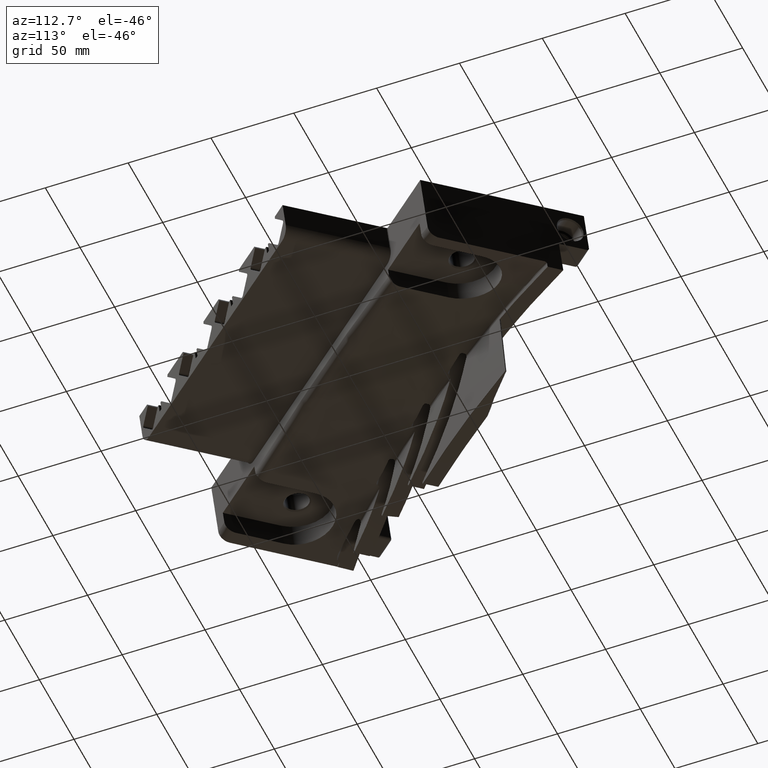
[diagram: clean part render]
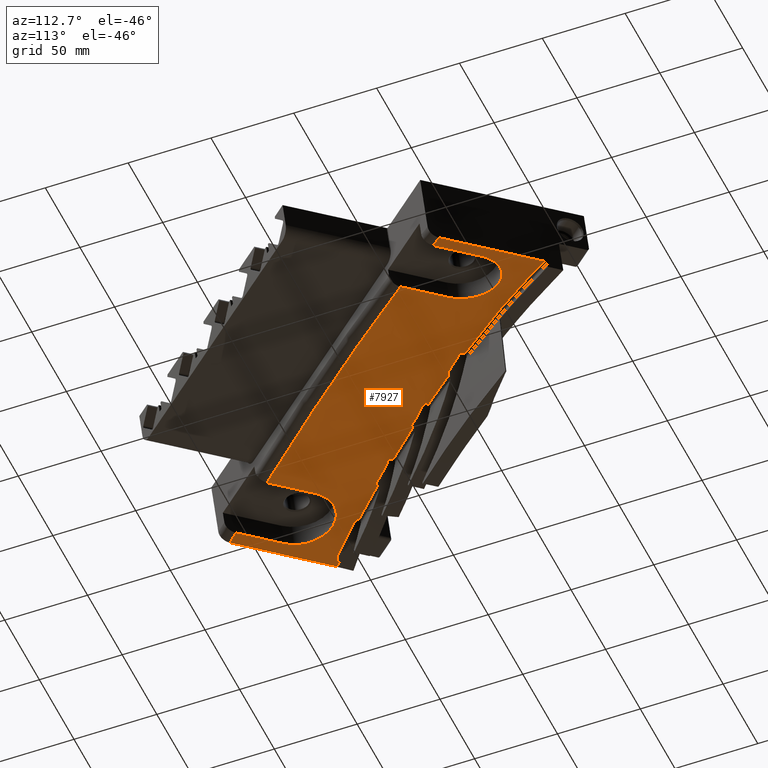
[diagram: same view with one face highlighted and labeled with its STEP entity id]
A machine part, auxiliary view. The second image highlights one B-rep face of the part: STEP entity #7927.
In plain terms, the highlighted face is a freeform B-spline surface patch.
Its self-contained STEP definition (entity closure, byte-faithful):
#1438=CARTESIAN_POINT('',(8.552506155167E1,-3.274479739800E1,
-5.628775795286E0));
#1439=CARTESIAN_POINT('',(8.554114015950E1,-3.272982308045E1,
-5.627841789960E0));
#1440=CARTESIAN_POINT('',(8.557790140134E1,-3.269404744532E1,
-5.627260807264E0));
#1441=CARTESIAN_POINT('',(8.560986553718E1,-3.266702117015E1,
-5.628614556335E0));
#1442=CARTESIAN_POINT('',(8.563017364487E1,-3.264801637074E1,
-5.627484155506E0));
#1621=CARTESIAN_POINT('',(9.049537046179E1,-2.763954532607E1,
-5.694882987861E0));
#1622=CARTESIAN_POINT('',(9.078311395597E1,-2.730148792646E1,
-5.723601063649E0));
#1623=CARTESIAN_POINT('',(9.133341762464E1,-2.663910692400E1,
-5.790517493612E0));
#1624=CARTESIAN_POINT('',(9.208195935203E1,-2.569447957638E1,
-5.916201620488E0));
#1625=CARTESIAN_POINT('',(9.253682100263E1,-2.509248833436E1,
-6.015443342163E0));
#1626=CARTESIAN_POINT('',(9.275297181294E1,-2.479969435233E1,
-6.068236377499E0));
#1628=CARTESIAN_POINT('',(8.930227739687E1,-2.899826717522E1,
-5.607348783994E0));
#1629=CARTESIAN_POINT('',(8.942138983477E1,-2.886668998246E1,
-5.613184011278E0));
#1630=CARTESIAN_POINT('',(8.965722979228E1,-2.860652651222E1,
-5.626240401161E0));
#1631=CARTESIAN_POINT('',(8.987963266977E1,-2.834614209662E1,
-5.642168795947E0));
#1632=CARTESIAN_POINT('',(8.999115758223E1,-2.821855591601E1,
-5.650751462058E0));
#1634=CARTESIAN_POINT('',(8.802144727587E1,-3.037057881869E1,
-5.573046600124E0));
#1635=CARTESIAN_POINT('',(8.814536803766E1,-3.024174083009E1,
-5.573833358242E0));
#1636=CARTESIAN_POINT('',(8.839223711583E1,-2.998227333602E1,
-5.576778493730E0));
#1637=CARTESIAN_POINT('',(8.863995099698E1,-2.971992058999E1,
-5.582581124012E0));
#1638=CARTESIAN_POINT('',(8.876283633333E1,-2.958767547025E1,
-5.586229867931E0));
#1640=CARTESIAN_POINT('',(8.664290142982E1,-3.176033755909E1,
-5.591062881304E0));
#1641=CARTESIAN_POINT('',(8.676807996740E1,-3.163803786262E1,
-5.587108655192E0));
#1642=CARTESIAN_POINT('',(8.702271503873E1,-3.138743348264E1,
-5.580238769879E0));
#1643=CARTESIAN_POINT('',(8.728434231913E1,-3.112334628116E1,
-5.575859650619E0));
#1644=CARTESIAN_POINT('',(8.741761176437E1,-3.098852411036E1,
-5.574409980600E0));
#1646=CARTESIAN_POINT('',(8.744445868757E1,-3.449489464833E1,
-6.005867975573E0));
#1647=CARTESIAN_POINT('',(8.748028340315E1,-3.445615546106E1,
-6.003231319326E0));
#1648=CARTESIAN_POINT('',(8.755181827854E1,-3.437877319984E1,
-5.998096407806E0));
#1649=CARTESIAN_POINT('',(8.762312681285E1,-3.430158617873E1,
-5.993207890221E0));
#1650=CARTESIAN_POINT('',(8.765872480264E1,-3.426304023720E1,
-5.990829913463E0));
#1652=CARTESIAN_POINT('',(8.875762592804E1,-3.306895090344E1,
-5.936808001065E0));
#1653=CARTESIAN_POINT('',(8.931674882609E1,-3.245923264776E1,
-5.919332708529E0));
#1654=CARTESIAN_POINT('',(9.040024990722E1,-3.127110981601E1,
-5.915931943087E0));
#1655=CARTESIAN_POINT('',(9.193545977236E1,-2.956846052887E1,
-6.000001225266E0));
#1656=CARTESIAN_POINT('',(9.289624141131E1,-2.848919144078E1,
-6.116385599596E0));
#1657=CARTESIAN_POINT('',(9.336168828954E1,-2.796272032427E1,
-6.189713083117E0));
#1659=CARTESIAN_POINT('',(9.442756847189E1,-2.675025802709E1,
-6.389634618064E0));
#1660=CARTESIAN_POINT('',(9.446214496244E1,-2.671069505147E1,
-6.397205382005E0));
#1661=CARTESIAN_POINT('',(9.453109969295E1,-2.663174826725E1,
-6.412527440817E0));
#1662=CARTESIAN_POINT('',(9.459965942847E1,-2.655316075983E1,
-6.428198800308E0));
#1663=CARTESIAN_POINT('',(9.463383967895E1,-2.651395727830E1,
-6.436124076419E0));
#1708=CARTESIAN_POINT('',(9.049537046179E1,-2.763954532607E1,
-5.694882987861E0));
#1709=CARTESIAN_POINT('',(9.050087665945E1,-2.764458552214E1,
-5.695990555816E0));
#1710=CARTESIAN_POINT('',(9.051219295327E1,-2.765487358338E1,
-5.698216747454E0));
#1711=CARTESIAN_POINT('',(9.052195331571E1,-2.766403801002E1,
-5.700346486974E0));
#1712=CARTESIAN_POINT('',(9.052734662822E1,-2.766898070701E1,
-5.701431632647E0));
#1836=CARTESIAN_POINT('',(8.930227739687E1,-2.899826717522E1,
-5.607348783994E0));
#1837=CARTESIAN_POINT('',(8.930873086059E1,-2.900419267357E1,
-5.608649540378E0));
#1838=CARTESIAN_POINT('',(8.932206011506E1,-2.901633467749E1,
-5.611259371615E0));
#1839=CARTESIAN_POINT('',(8.933342526341E1,-2.902705893800E1,
-5.613780142182E0));
#1840=CARTESIAN_POINT('',(8.933978649147E1,-2.903289926417E1,
-5.615062270812E0));
#1878=CARTESIAN_POINT('',(8.933978649147E1,-2.903289926417E1,
-5.615062270812E0));
#1879=CARTESIAN_POINT('',(8.934578681477E1,-2.903840825944E1,
-5.616271659321E0));
#1880=CARTESIAN_POINT('',(8.935623022875E1,-2.905256939325E1,
-5.618515165560E0));
#1881=CARTESIAN_POINT('',(8.935409705232E1,-2.908368385377E1,
-5.620677678835E0));
#1882=CARTESIAN_POINT('',(8.933807671932E1,-2.911082183413E1,
-5.620566097298E0));
#1883=CARTESIAN_POINT('',(8.932028030510E1,-2.912651487217E1,
-5.619533603950E0));
#1884=CARTESIAN_POINT('',(8.931265570792E1,-2.913225608068E1,
-5.618975002788E0));
#1915=CARTESIAN_POINT('',(8.931265570792E1,-2.913225608068E1,
-5.618975002788E0));
#1916=CARTESIAN_POINT('',(8.926049681564E1,-2.917151994327E1,
-5.615152838792E0));
#1917=CARTESIAN_POINT('',(8.916229655834E1,-2.925328663719E1,
-5.608631593257E0));
#1918=CARTESIAN_POINT('',(8.906852248384E1,-2.934636879104E1,
-5.604283839042E0));
#1919=CARTESIAN_POINT('',(8.902335292283E1,-2.939586291304E1,
-5.602632990124E0));
#2006=CARTESIAN_POINT('',(8.802144727587E1,-3.037057881869E1,
-5.573046600124E0));
#2007=CARTESIAN_POINT('',(8.802616838380E1,-3.037510623553E1,
-5.574012669072E0));
#2008=CARTESIAN_POINT('',(8.803599205239E1,-3.038442398059E1,
-5.575951601134E0));
#2009=CARTESIAN_POINT('',(8.804408793364E1,-3.039248268263E1,
-5.577836912031E0));
#2010=CARTESIAN_POINT('',(8.804874220356E1,-3.039694134201E1,
-5.578788842006E0));
#2127=CARTESIAN_POINT('',(8.664290142982E1,-3.176033755909E1,
-5.591062881304E0));
#2128=CARTESIAN_POINT('',(8.664874099697E1,-3.176632293103E1,
-5.592297438396E0));
#2129=CARTESIAN_POINT('',(8.665580071848E1,-3.178190371888E1,
-5.594806813742E0));
#2130=CARTESIAN_POINT('',(8.665437767966E1,-3.180801046895E1,
-5.597860728870E0));
#2131=CARTESIAN_POINT('',(8.664388087685E1,-3.183566501198E1,
-5.600295493265E0));
#2132=CARTESIAN_POINT('',(8.662865700341E1,-3.185957493423E1,
-5.601997893801E0));
#2133=CARTESIAN_POINT('',(8.661373451194E1,-3.187549734292E1,
-5.602426393030E0));
#2134=CARTESIAN_POINT('',(8.660783325962E1,-3.188124270886E1,
-5.602625726132E0));
#2232=CARTESIAN_POINT('',(8.568156162881E1,-3.267278757066E1,
-5.632027035649E0));
#2233=CARTESIAN_POINT('',(8.567632844335E1,-3.266637038868E1,
-5.630780552349E0));
#2234=CARTESIAN_POINT('',(8.566586269426E1,-3.265353923682E1,
-5.628288078190E0));
#2235=CARTESIAN_POINT('',(8.565539818231E1,-3.264071451254E1,
-5.625796588507E0));
#2236=CARTESIAN_POINT('',(8.565016623494E1,-3.263430375814E1,
-5.624551089818E0));
#2248=CARTESIAN_POINT('',(8.565016623494E1,-3.263430375814E1,
-5.624551089818E0));
#2249=CARTESIAN_POINT('',(8.564697619342E1,-3.263766142229E1,
-5.625748367618E0));
#2250=CARTESIAN_POINT('',(8.563894388653E1,-3.264505045914E1,
-5.629671135617E0));
#2251=CARTESIAN_POINT('',(8.563440256084E1,-3.264593067038E1,
-5.626584719725E0));
#2252=CARTESIAN_POINT('',(8.563017364487E1,-3.264801637074E1,
-5.627484155506E0));
#2254=CARTESIAN_POINT('',(8.583914925583E1,-3.260473995350E1,
-5.635738569006E0));
#2255=CARTESIAN_POINT('',(8.584645449462E1,-3.259911725684E1,
-5.635523946874E0));
#2256=CARTESIAN_POINT('',(8.586028696229E1,-3.258700135430E1,
-5.632889036398E0));
#2257=CARTESIAN_POINT('',(8.588388334749E1,-3.256802714510E1,
-5.632766855642E0));
#2258=CARTESIAN_POINT('',(8.589833030639E1,-3.255492037874E1,
-5.632374722698E0));
#2259=CARTESIAN_POINT('',(8.590609528723E1,-3.254767078683E1,
-5.631990999751E0));
#2283=CARTESIAN_POINT('',(8.583914925583E1,-3.260473995350E1,
-5.635738569006E0));
#2284=CARTESIAN_POINT('',(8.583199500842E1,-3.261024643510E1,
-5.635948755132E0));
#2285=CARTESIAN_POINT('',(8.581728850224E1,-3.261901106981E1,
-5.633968216902E0));
#2286=CARTESIAN_POINT('',(8.579828298358E1,-3.263255876687E1,
-5.635229236946E0));
#2287=CARTESIAN_POINT('',(8.577895037640E1,-3.264447868459E1,
-5.635198598861E0));
#2288=CARTESIAN_POINT('',(8.576077837969E1,-3.265494630568E1,
-5.635347416835E0));
#2289=CARTESIAN_POINT('',(8.574317746271E1,-3.266396036267E1,
-5.635271851531E0));
#2290=CARTESIAN_POINT('',(8.572642218074E1,-3.267129662990E1,
-5.635056406869E0));
#2291=CARTESIAN_POINT('',(8.571001718634E1,-3.267673760494E1,
-5.634608658392E0));
#2292=CARTESIAN_POINT('',(8.569396083065E1,-3.267928838938E1,
-5.633799528004E0));
#2293=CARTESIAN_POINT('',(8.568456891596E1,-3.267647524980E1,
-5.632743336118E0));
#2294=CARTESIAN_POINT('',(8.568156162881E1,-3.267278757066E1,
-5.632027035649E0));
#2296=CARTESIAN_POINT('',(8.660783325962E1,-3.188124270886E1,
-5.602625726132E0));
#2297=CARTESIAN_POINT('',(8.652757844317E1,-3.195937983851E1,
-5.605336864799E0));
#2298=CARTESIAN_POINT('',(8.637371136009E1,-3.210801138561E1,
-5.611182566179E0));
#2299=CARTESIAN_POINT('',(8.613087776599E1,-3.233790083655E1,
-5.620868409989E0));
#2300=CARTESIAN_POINT('',(8.598150701797E1,-3.247726320082E1,
-5.628264210643E0));
#2301=CARTESIAN_POINT('',(8.590609528723E1,-3.254767078683E1,
-5.631990999751E0));
#2409=CARTESIAN_POINT('',(8.552506155167E1,-3.274479739800E1,
-5.628775795286E0));
#2410=CARTESIAN_POINT('',(8.573702717880E1,-3.293798331726E1,
-5.670144796436E0));
#2411=CARTESIAN_POINT('',(8.616100815978E1,-3.332548263371E1,
-5.755992816463E0));
#2412=CARTESIAN_POINT('',(8.680036379384E1,-3.390775648587E1,
-5.879651067371E0));
#2413=CARTESIAN_POINT('',(8.722933163166E1,-3.429882349934E1,
-5.963795419973E0));
#2414=CARTESIAN_POINT('',(8.744445868757E1,-3.449489464833E1,
-6.005867975573E0));
#3246=CARTESIAN_POINT('',(9.463383967895E1,-2.651395727830E1,
-6.436124076419E0));
#3247=CARTESIAN_POINT('',(9.442287629704E1,-2.632167840427E1,
-6.394808477543E0));
#3248=CARTESIAN_POINT('',(9.400227890534E1,-2.593833397431E1,
-6.312472236953E0));
#3249=CARTESIAN_POINT('',(9.337623856994E1,-2.536774729928E1,
-6.190019542189E0));
#3250=CARTESIAN_POINT('',(9.296038067562E1,-2.498872879015E1,
-6.108750759775E0));
#3251=CARTESIAN_POINT('',(9.275297181294E1,-2.479969435233E1,
-6.068236377499E0));
#3259=CARTESIAN_POINT('',(9.463383967895E1,-2.651395727830E1,
-6.436124076419E0));
#3621=CARTESIAN_POINT('',(9.356027807090E1,-2.595975462039E1,
-6.219184201017E0));
#3622=CARTESIAN_POINT('',(9.365619881124E1,-2.604718247116E1,
-6.238026735203E0));
#3623=CARTESIAN_POINT('',(9.384834353116E1,-2.622231480538E1,
-6.275777196823E0));
#3624=CARTESIAN_POINT('',(9.413743588148E1,-2.648581208924E1,
-6.332594616048E0));
#3625=CARTESIAN_POINT('',(9.433075920722E1,-2.666201950119E1,
-6.370599302071E0));
#3626=CARTESIAN_POINT('',(9.442756847189E1,-2.675025802709E1,
-6.389634618064E0));
#3628=CARTESIAN_POINT('',(9.249512289141E1,-2.717275830505E1,
-6.016791405847E0));
#3629=CARTESIAN_POINT('',(9.242621940832E1,-2.710994611265E1,
-6.003045745622E0));
#3630=CARTESIAN_POINT('',(9.231028844785E1,-2.695945382141E1,
-5.979017899501E0));
#3631=CARTESIAN_POINT('',(9.222309395401E1,-2.668573498809E1,
-5.958148255687E0));
#3632=CARTESIAN_POINT('',(9.223369126683E1,-2.639787284814E1,
-5.956051615199E0));
#3633=CARTESIAN_POINT('',(9.233920631013E1,-2.613167047008E1,
-5.973727277228E0));
#3634=CARTESIAN_POINT('',(9.252865641031E1,-2.591619313818E1,
-6.010010569204E0));
#3635=CARTESIAN_POINT('',(9.277613238524E1,-2.578046580908E1,
-6.059851614750E0));
#3636=CARTESIAN_POINT('',(9.305497843156E1,-2.573805045692E1,
-6.117078685130E0));
#3637=CARTESIAN_POINT('',(9.333180382728E1,-2.579617132289E1,
-6.173724009029E0));
#3638=CARTESIAN_POINT('',(9.349137268913E1,-2.589695016942E1,
-6.205648525553E0));
#3639=CARTESIAN_POINT('',(9.356027807090E1,-2.595975462039E1,
-6.219184201017E0));
#3651=CARTESIAN_POINT('',(9.336168828954E1,-2.796272032427E1,
-6.189713083117E0));
#3657=CARTESIAN_POINT('',(9.336168828954E1,-2.796272032427E1,
-6.189713083117E0));
#3658=CARTESIAN_POINT('',(9.326505497497E1,-2.787462944143E1,
-6.170429655089E0));
#3659=CARTESIAN_POINT('',(9.307202525933E1,-2.769865991887E1,
-6.131879007288E0));
#3660=CARTESIAN_POINT('',(9.278316805835E1,-2.743533978651E1,
-6.074259013165E0));
#3661=CARTESIAN_POINT('',(9.259105999865E1,-2.726021426179E1,
-6.035930044705E0));
#3662=CARTESIAN_POINT('',(9.249512289141E1,-2.717275830505E1,
-6.016791405847E0));
#3672=CARTESIAN_POINT('',(8.789078298913E1,-3.227878177174E1,
-5.764841717430E0));
#3673=CARTESIAN_POINT('',(8.798677140389E1,-3.236627963382E1,
-5.783882515631E0));
#3674=CARTESIAN_POINT('',(8.817897027461E1,-3.254147791274E1,
-5.822008003970E0));
#3675=CARTESIAN_POINT('',(8.846791359177E1,-3.280486347144E1,
-5.879349692713E0));
#3676=CARTESIAN_POINT('',(8.866098363970E1,-3.298085664330E1,
-5.917629453573E0));
#3677=CARTESIAN_POINT('',(8.875762592804E1,-3.306895090344E1,
-5.936808001065E0));
#3679=CARTESIAN_POINT('',(8.679130736683E1,-3.347244020401E1,
-5.820796474071E0));
#3680=CARTESIAN_POINT('',(8.672229512367E1,-3.340953986483E1,
-5.807273377573E0));
#3681=CARTESIAN_POINT('',(8.660694933863E1,-3.325921745161E1,
-5.778659286921E0));
#3682=CARTESIAN_POINT('',(8.652270381797E1,-3.298738383147E1,
-5.736327520650E0));
#3683=CARTESIAN_POINT('',(8.653790435430E1,-3.270170194160E1,
-5.700208675137E0));
#3684=CARTESIAN_POINT('',(8.664890956180E1,-3.243924444607E1,
-5.675506684807E0));
#3685=CARTESIAN_POINT('',(8.684422595142E1,-3.222727089232E1,
-5.665296837007E0));
#3686=CARTESIAN_POINT('',(8.709776565743E1,-3.209461682160E1,
-5.671112048635E0));
#3687=CARTESIAN_POINT('',(8.738135859380E1,-3.205488880642E1,
-5.691805048502E0));
#3688=CARTESIAN_POINT('',(8.766156443911E1,-3.211476232914E1,
-5.724549552906E0));
#3689=CARTESIAN_POINT('',(8.782187830896E1,-3.221597198145E1,
-5.751173400127E0));
#3690=CARTESIAN_POINT('',(8.789078298913E1,-3.227878177174E1,
-5.764841717430E0));
#3702=CARTESIAN_POINT('',(8.765872480264E1,-3.426304023720E1,
-5.990829913463E0));
#3708=CARTESIAN_POINT('',(8.765872480264E1,-3.426304023720E1,
-5.990829913463E0));
#3709=CARTESIAN_POINT('',(8.756194361066E1,-3.417482955549E1,
-5.971850238228E0));
#3710=CARTESIAN_POINT('',(8.736864778623E1,-3.399865099281E1,
-5.933959022687E0));
#3711=CARTESIAN_POINT('',(8.707951382481E1,-3.373512260624E1,
-5.877275138497E0));
#3712=CARTESIAN_POINT('',(8.688728427343E1,-3.355991714579E1,
-5.839603353978E0));
#3713=CARTESIAN_POINT('',(8.679130736683E1,-3.347244020401E1,
-5.820796474071E0));
#4705=CARTESIAN_POINT('',(8.754281171291E1,-3.094986019924E1,
-5.582788710977E0));
#4706=CARTESIAN_POINT('',(8.753465573882E1,-3.095802687015E1,
-5.582846476689E0));
#4707=CARTESIAN_POINT('',(8.751788045337E1,-3.097208511188E1,
-5.582492355744E0));
#4708=CARTESIAN_POINT('',(8.749144622420E1,-3.098776134290E1,
-5.581609788608E0));
#4709=CARTESIAN_POINT('',(8.746522631622E1,-3.099752590522E1,
-5.580045330988E0));
#4710=CARTESIAN_POINT('',(8.743863498139E1,-3.099977223572E1,
-5.577584942208E0));
#4711=CARTESIAN_POINT('',(8.742364988385E1,-3.099460158836E1,
-5.575674474135E0));
#4712=CARTESIAN_POINT('',(8.741761176437E1,-3.098852411036E1,
-5.574409980600E0));
#4724=CARTESIAN_POINT('',(8.778219975091E1,-3.070662851029E1,
-5.581620185018E0));
#4725=CARTESIAN_POINT('',(8.774202623207E1,-3.074787187064E1,
-5.581691430944E0));
#4726=CARTESIAN_POINT('',(8.766071171498E1,-3.083116262793E1,
-5.581800994890E0));
#4727=CARTESIAN_POINT('',(8.758246859866E1,-3.091015356188E1,
-5.582508079751E0));
#4728=CARTESIAN_POINT('',(8.754281171291E1,-3.094986019924E1,
-5.582788710977E0));
#4739=CARTESIAN_POINT('',(8.801718237105E1,-3.049889743973E1,
-5.585442484241E0));
#4740=CARTESIAN_POINT('',(8.797502098922E1,-3.053083017374E1,
-5.584077926165E0));
#4741=CARTESIAN_POINT('',(8.789613292483E1,-3.059575060012E1,
-5.582019048217E0));
#4742=CARTESIAN_POINT('',(8.781946093042E1,-3.066837746601E1,
-5.581554355322E0));
#4743=CARTESIAN_POINT('',(8.778219975091E1,-3.070662851029E1,
-5.581620185018E0));
#4759=CARTESIAN_POINT('',(8.804874220356E1,-3.039694134201E1,
-5.578788842006E0));
#4760=CARTESIAN_POINT('',(8.805488982120E1,-3.040283077450E1,
-5.580046222522E0));
#4761=CARTESIAN_POINT('',(8.806462126279E1,-3.041808469041E1,
-5.582425351271E0));
#4762=CARTESIAN_POINT('',(8.806051049203E1,-3.044968189510E1,
-5.585202524454E0));
#4763=CARTESIAN_POINT('',(8.804324091808E1,-3.047683416948E1,
-5.585969026869E0));
#4764=CARTESIAN_POINT('',(8.802499013059E1,-3.049298242072E1,
-5.585695035103E0));
#4765=CARTESIAN_POINT('',(8.801718237105E1,-3.049889743973E1,
-5.585442484241E0));
#4830=CARTESIAN_POINT('',(8.887359338401E1,-2.955955546546E1,
-5.597612698409E0));
#4831=CARTESIAN_POINT('',(8.886516999996E1,-2.956873964684E1,
-5.597352465703E0));
#4832=CARTESIAN_POINT('',(8.884932066037E1,-2.958123545663E1,
-5.596356140155E0));
#4833=CARTESIAN_POINT('',(8.882529391922E1,-2.959408964282E1,
-5.594548474095E0));
#4834=CARTESIAN_POINT('',(8.880264963689E1,-2.959988394181E1,
-5.592240944507E0));
#4835=CARTESIAN_POINT('',(8.878054025358E1,-2.959922063148E1,
-5.589543678927E0));
#4836=CARTESIAN_POINT('',(8.876771457436E1,-2.959214694107E1,
-5.587211092090E0));
#4837=CARTESIAN_POINT('',(8.876283633333E1,-2.958767547025E1,
-5.586229867931E0));
#4844=CARTESIAN_POINT('',(8.902335292283E1,-2.939586291304E1,
-5.602632990124E0));
#4845=CARTESIAN_POINT('',(8.899857928525E1,-2.942300840317E1,
-5.601727568497E0));
#4846=CARTESIAN_POINT('',(8.894816755630E1,-2.947820532774E1,
-5.599865148250E0));
#4847=CARTESIAN_POINT('',(8.889797934670E1,-2.953296704989E1,
-5.598366087043E0));
#4848=CARTESIAN_POINT('',(8.887359338401E1,-2.955955546546E1,
-5.597612698409E0));
#4955=CARTESIAN_POINT('',(9.009354743556E1,-2.819011313290E1,
-5.663500720777E0));
#4956=CARTESIAN_POINT('',(9.008470808738E1,-2.820022853322E1,
-5.662797132892E0));
#4957=CARTESIAN_POINT('',(9.006695052504E1,-2.821382478629E1,
-5.660910435815E0));
#4958=CARTESIAN_POINT('',(9.004145166589E1,-2.822616287379E1,
-5.658033852723E0));
#4959=CARTESIAN_POINT('',(9.001649996402E1,-2.822808715633E1,
-5.654130880315E0));
#4960=CARTESIAN_POINT('',(8.999939840503E1,-2.822608421978E1,
-5.652410272910E0));
#4961=CARTESIAN_POINT('',(8.999115758223E1,-2.821855591601E1,
-5.650751462058E0));
#4980=CARTESIAN_POINT('',(9.050547590468E1,-2.776791725133E1,
-5.702836969018E0));
#4981=CARTESIAN_POINT('',(9.047092664831E1,-2.779615796758E1,
-5.698880151015E0));
#4982=CARTESIAN_POINT('',(9.040972560516E1,-2.785005102036E1,
-5.692087351026E0));
#4983=CARTESIAN_POINT('',(9.032424791851E1,-2.793412227725E1,
-5.683495859312E0));
#4984=CARTESIAN_POINT('',(9.024392047444E1,-2.802003248505E1,
-5.676045961808E0));
#4985=CARTESIAN_POINT('',(9.016638507662E1,-2.810682029273E1,
-5.669329310889E0));
#4986=CARTESIAN_POINT('',(9.011670972782E1,-2.816358511957E1,
-5.665343074758E0));
#4987=CARTESIAN_POINT('',(9.009354743556E1,-2.819011313290E1,
-5.663500720777E0));
#5007=CARTESIAN_POINT('',(9.052734662822E1,-2.766898070701E1,
-5.701431632647E0));
#5008=CARTESIAN_POINT('',(9.053334326235E1,-2.767447536687E1,
-5.702638121754E0));
#5009=CARTESIAN_POINT('',(9.054331444888E1,-2.768894362018E1,
-5.704747178082E0));
#5010=CARTESIAN_POINT('',(9.054337892557E1,-2.771779934794E1,
-5.706232657427E0));
#5011=CARTESIAN_POINT('',(9.052887715765E1,-2.774629754894E1,
-5.705320528075E0));
#5012=CARTESIAN_POINT('',(9.051273047366E1,-2.776199074006E1,
-5.703667982403E0));
#5013=CARTESIAN_POINT('',(9.050547590468E1,-2.776791725133E1,
-5.702836969018E0));
#5531=VERTEX_POINT('',#1438);
#5532=VERTEX_POINT('',#1442);
#5533=VERTEX_POINT('',#2296);
#5534=VERTEX_POINT('',#2301);
#5535=VERTEX_POINT('',#2232);
#5536=VERTEX_POINT('',#2236);
#5537=VERTEX_POINT('',#2254);
#5538=VERTEX_POINT('',#4724);
#5539=VERTEX_POINT('',#4728);
#5540=VERTEX_POINT('',#4739);
#5541=VERTEX_POINT('',#4759);
#5542=VERTEX_POINT('',#4844);
#5543=VERTEX_POINT('',#4848);
#5544=VERTEX_POINT('',#1915);
#5545=VERTEX_POINT('',#1878);
#5546=VERTEX_POINT('',#4980);
#5547=VERTEX_POINT('',#4987);
#5548=VERTEX_POINT('',#5007);
#5549=VERTEX_POINT('',#3628);
#5550=VERTEX_POINT('',#3639);
#5551=VERTEX_POINT('',#3679);
#5552=VERTEX_POINT('',#3690);
#5554=VERTEX_POINT('',#3651);
#5555=VERTEX_POINT('',#1652);
#5558=VERTEX_POINT('',#3259);
#5559=VERTEX_POINT('',#1659);
#5562=VERTEX_POINT('',#3702);
#5563=VERTEX_POINT('',#1646);
#5567=VERTEX_POINT('',#1621);
#5568=VERTEX_POINT('',#1626);
#5571=VERTEX_POINT('',#1628);
#5572=VERTEX_POINT('',#1632);
#5575=VERTEX_POINT('',#1634);
#5576=VERTEX_POINT('',#1638);
#5579=VERTEX_POINT('',#1640);
#5580=VERTEX_POINT('',#1644);
#7821=CARTESIAN_POINT('',(8.535646095301E1,-3.272314538211E1,
-5.616100500690E0));
#7822=CARTESIAN_POINT('',(8.600871646035E1,-3.341631586267E1,
-5.756946255956E0));
#7823=CARTESIAN_POINT('',(8.666097196769E1,-3.410948634323E1,
-5.897792011222E0));
#7824=CARTESIAN_POINT('',(8.731322747503E1,-3.480265682379E1,
-6.038637766488E0));
#7825=CARTESIAN_POINT('',(8.553865991304E1,-3.255406241731E1,
-5.605166003379E0));
#7826=CARTESIAN_POINT('',(8.619339905203E1,-3.324491644770E1,
-5.745909177044E0));
#7827=CARTESIAN_POINT('',(8.684813819101E1,-3.393577047809E1,
-5.886652350708E0));
#7828=CARTESIAN_POINT('',(8.750287733E1,-3.462662450848E1,-6.027395524373E0));
#7829=CARTESIAN_POINT('',(8.646498251793E1,-3.168383435612E1,
-5.555714655116E0));
#7830=CARTESIAN_POINT('',(8.713225838698E1,-3.236284994564E1,
-5.696028306913E0));
#7831=CARTESIAN_POINT('',(8.779953425603E1,-3.304186553517E1,
-5.836341958709E0));
#7832=CARTESIAN_POINT('',(8.846681012508E1,-3.372088112469E1,
-5.976655610506E0));
#7833=CARTESIAN_POINT('',(8.808633027110E1,-3.006453588822E1,
-5.524303409076E0));
#7834=CARTESIAN_POINT('',(8.877483876035E1,-3.072221957039E1,
-5.664659349197E0));
#7835=CARTESIAN_POINT('',(8.946334724960E1,-3.137990325255E1,
-5.805015289318E0));
#7836=CARTESIAN_POINT('',(9.015185573884E1,-3.203758693472E1,
-5.945371229439E0));
#7837=CARTESIAN_POINT('',(9.015986112419E1,-2.778196394892E1,
-5.616833888480E0));
#7838=CARTESIAN_POINT('',(9.087564559069E1,-2.840949265451E1,
-5.758986732170E0));
#7839=CARTESIAN_POINT('',(9.159143005719E1,-2.903702136010E1,
-5.901139575860E0));
#7840=CARTESIAN_POINT('',(9.230721452369E1,-2.966455006569E1,
-6.043292419550E0));
#7841=CARTESIAN_POINT('',(9.166773135063E1,-2.593405284997E1,
-5.824092915528E0));
#7842=CARTESIAN_POINT('',(9.240497711314E1,-2.653524191443E1,
-5.969567999641E0));
#7843=CARTESIAN_POINT('',(9.314222287564E1,-2.713643097889E1,
-6.115043083754E0));
#7844=CARTESIAN_POINT('',(9.387946863815E1,-2.773762004335E1,
-6.260518167866E0));
#7845=CARTESIAN_POINT('',(9.248028813204E1,-2.485108612746E1,
-6.007747602576E0));
#7846=CARTESIAN_POINT('',(9.323027532377E1,-2.543523240723E1,
-6.156341985756E0));
#7847=CARTESIAN_POINT('',(9.398026251550E1,-2.601937868700E1,
-6.304936368936E0));
#7848=CARTESIAN_POINT('',(9.473024970723E1,-2.660352496677E1,
-6.453530752116E0));
#7849=CARTESIAN_POINT('',(9.266284100011E1,-2.460269146820E1,
-6.053253431542E0));
#7850=CARTESIAN_POINT('',(9.341575776016E1,-2.518283452101E1,
-6.202635343543E0));
#7851=CARTESIAN_POINT('',(9.416867452020E1,-2.576297757381E1,
-6.352017255543E0));
#7852=CARTESIAN_POINT('',(9.492159128024E1,-2.634312062661E1,
-6.501399167543E0));
#7853=B_SPLINE_SURFACE_WITH_KNOTS('',3,3,((#7821,#7822,#7823,#7824),(#7825,
#7826,#7827,#7828),(#7829,#7830,#7831,#7832),(#7833,#7834,#7835,#7836),(#7837,
#7838,#7839,#7840),(#7841,#7842,#7843,#7844),(#7845,#7846,#7847,#7848),(#7849,
#7850,#7851,#7852)),.UNSPECIFIED.,.F.,.F.,.F.,(4,1,1,1,1,4),(4,4),(
2.143542172301E-1,2.532503131020E-1,4.132893280498E-1,5.733126536919E-1,
7.333234044237E-1,7.804257195288E-1),(-2.234409012101E-2,4.492561751115E-1),
.UNSPECIFIED.);
#7855=ORIENTED_EDGE('',*,*,#7854,.F.);
#7857=ORIENTED_EDGE('',*,*,#7856,.T.);
#7859=ORIENTED_EDGE('',*,*,#7858,.T.);
#7861=ORIENTED_EDGE('',*,*,#7860,.T.);
#7863=ORIENTED_EDGE('',*,*,#7862,.T.);
#7865=ORIENTED_EDGE('',*,*,#7864,.F.);
#7867=ORIENTED_EDGE('',*,*,#7866,.T.);
#7869=ORIENTED_EDGE('',*,*,#7868,.T.);
#7871=ORIENTED_EDGE('',*,*,#7870,.T.);
#7873=ORIENTED_EDGE('',*,*,#7872,.T.);
#7875=ORIENTED_EDGE('',*,*,#7874,.T.);
#7877=ORIENTED_EDGE('',*,*,#7876,.F.);
#7879=ORIENTED_EDGE('',*,*,#7878,.T.);
#7881=ORIENTED_EDGE('',*,*,#7880,.T.);
#7883=ORIENTED_EDGE('',*,*,#7882,.T.);
#7885=ORIENTED_EDGE('',*,*,#7884,.T.);
#7887=ORIENTED_EDGE('',*,*,#7886,.T.);
#7889=ORIENTED_EDGE('',*,*,#7888,.F.);
#7891=ORIENTED_EDGE('',*,*,#7890,.T.);
#7893=ORIENTED_EDGE('',*,*,#7892,.T.);
#7895=ORIENTED_EDGE('',*,*,#7894,.F.);
#7897=ORIENTED_EDGE('',*,*,#7896,.T.);
#7899=ORIENTED_EDGE('',*,*,#7898,.T.);
#7901=ORIENTED_EDGE('',*,*,#7900,.T.);
#7902=ORIENTED_EDGE('',*,*,#7626,.F.);
#7904=ORIENTED_EDGE('',*,*,#7903,.T.);
#7906=ORIENTED_EDGE('',*,*,#7905,.T.);
#7908=ORIENTED_EDGE('',*,*,#7907,.T.);
#7910=ORIENTED_EDGE('',*,*,#7909,.T.);
#7912=ORIENTED_EDGE('',*,*,#7911,.T.);
#7914=ORIENTED_EDGE('',*,*,#7913,.T.);
#7916=ORIENTED_EDGE('',*,*,#7915,.T.);
#7918=ORIENTED_EDGE('',*,*,#7917,.T.);
#7920=ORIENTED_EDGE('',*,*,#7919,.T.);
#7922=ORIENTED_EDGE('',*,*,#7921,.T.);
#7924=ORIENTED_EDGE('',*,*,#7923,.T.);
#7925=EDGE_LOOP('',(#7855,#7857,#7859,#7861,#7863,#7865,#7867,#7869,#7871,#7873,
#7875,#7877,#7879,#7881,#7883,#7885,#7887,#7889,#7891,#7893,#7895,#7897,#7899,
#7901,#7902,#7904,#7906,#7908,#7910,#7912,#7914,#7916,#7918,#7920,#7922,#7924));
#7926=FACE_OUTER_BOUND('',#7925,.F.);
#7927=ADVANCED_FACE('',(#7926),#7853,.T.);
#1443=B_SPLINE_CURVE_WITH_KNOTS('',3,(#1438,#1439,#1440,#1441,#1442),
.UNSPECIFIED.,.F.,.F.,(4,1,4),(0.E0,5.E-1,1.E0),.UNSPECIFIED.);
#1627=B_SPLINE_CURVE_WITH_KNOTS('',3,(#1621,#1622,#1623,#1624,#1625,#1626),
.UNSPECIFIED.,.F.,.F.,(4,1,1,4),(0.E0,3.333333333333E-1,6.666666666667E-1,1.E0),
.UNSPECIFIED.);
#1633=B_SPLINE_CURVE_WITH_KNOTS('',3,(#1628,#1629,#1630,#1631,#1632),
.UNSPECIFIED.,.F.,.F.,(4,1,4),(0.E0,5.E-1,1.E0),.UNSPECIFIED.);
#1639=B_SPLINE_CURVE_WITH_KNOTS('',3,(#1634,#1635,#1636,#1637,#1638),
.UNSPECIFIED.,.F.,.F.,(4,1,4),(0.E0,5.E-1,1.E0),.UNSPECIFIED.);
#1645=B_SPLINE_CURVE_WITH_KNOTS('',3,(#1640,#1641,#1642,#1643,#1644),
.UNSPECIFIED.,.F.,.F.,(4,1,4),(0.E0,5.E-1,1.E0),.UNSPECIFIED.);
#1651=B_SPLINE_CURVE_WITH_KNOTS('',3,(#1646,#1647,#1648,#1649,#1650),
.UNSPECIFIED.,.F.,.F.,(4,1,4),(0.E0,5.E-1,1.E0),.UNSPECIFIED.);
#1658=B_SPLINE_CURVE_WITH_KNOTS('',3,(#1652,#1653,#1654,#1655,#1656,#1657),
.UNSPECIFIED.,.F.,.F.,(4,1,1,4),(0.E0,3.333333333333E-1,6.666666666667E-1,1.E0),
.UNSPECIFIED.);
#1664=B_SPLINE_CURVE_WITH_KNOTS('',3,(#1659,#1660,#1661,#1662,#1663),
.UNSPECIFIED.,.F.,.F.,(4,1,4),(0.E0,5.E-1,1.E0),.UNSPECIFIED.);
#1713=B_SPLINE_CURVE_WITH_KNOTS('',3,(#1708,#1709,#1710,#1711,#1712),
.UNSPECIFIED.,.F.,.F.,(4,1,4),(0.E0,5.E-1,1.E0),.UNSPECIFIED.);
#1841=B_SPLINE_CURVE_WITH_KNOTS('',3,(#1836,#1837,#1838,#1839,#1840),
.UNSPECIFIED.,.F.,.F.,(4,1,4),(0.E0,5.E-1,1.E0),.UNSPECIFIED.);
#1885=B_SPLINE_CURVE_WITH_KNOTS('',3,(#1878,#1879,#1880,#1881,#1882,#1883,
#1884),.UNSPECIFIED.,.F.,.F.,(4,1,1,1,4),(0.E0,2.5E-1,5.E-1,7.5E-1,1.E0),
.UNSPECIFIED.);
#1920=B_SPLINE_CURVE_WITH_KNOTS('',3,(#1915,#1916,#1917,#1918,#1919),
.UNSPECIFIED.,.F.,.F.,(4,1,4),(0.E0,5.E-1,1.E0),.UNSPECIFIED.);
#2011=B_SPLINE_CURVE_WITH_KNOTS('',3,(#2006,#2007,#2008,#2009,#2010),
.UNSPECIFIED.,.F.,.F.,(4,1,4),(0.E0,5.E-1,1.E0),.UNSPECIFIED.);
#2135=B_SPLINE_CURVE_WITH_KNOTS('',3,(#2127,#2128,#2129,#2130,#2131,#2132,#2133,
#2134),.UNSPECIFIED.,.F.,.F.,(4,1,1,1,1,4),(0.E0,2.E-1,4.E-1,6.E-1,8.E-1,1.E0),
.UNSPECIFIED.);
#2237=B_SPLINE_CURVE_WITH_KNOTS('',3,(#2232,#2233,#2234,#2235,#2236),
.UNSPECIFIED.,.F.,.F.,(4,1,4),(0.E0,5.E-1,1.E0),.UNSPECIFIED.);
#2253=B_SPLINE_CURVE_WITH_KNOTS('',3,(#2248,#2249,#2250,#2251,#2252),
.UNSPECIFIED.,.F.,.F.,(4,1,4),(0.E0,5.E-1,1.E0),.UNSPECIFIED.);
#2260=B_SPLINE_CURVE_WITH_KNOTS('',3,(#2254,#2255,#2256,#2257,#2258,#2259),
.UNSPECIFIED.,.F.,.F.,(4,1,1,4),(0.E0,3.333333333333E-1,6.666666666667E-1,1.E0),
.UNSPECIFIED.);
#2295=B_SPLINE_CURVE_WITH_KNOTS('',3,(#2283,#2284,#2285,#2286,#2287,#2288,#2289,
#2290,#2291,#2292,#2293,#2294),.UNSPECIFIED.,.F.,.F.,(4,1,1,1,1,1,1,1,1,4),
(0.E0,1.111111111111E-1,2.222222222222E-1,3.333333333333E-1,4.444444444444E-1,
5.555555555556E-1,6.666666666667E-1,7.777777777778E-1,8.888888888889E-1,1.E0),
.UNSPECIFIED.);
#2302=B_SPLINE_CURVE_WITH_KNOTS('',3,(#2296,#2297,#2298,#2299,#2300,#2301),
.UNSPECIFIED.,.F.,.F.,(4,1,1,4),(0.E0,3.333333333333E-1,6.666666666667E-1,1.E0),
.UNSPECIFIED.);
#2415=B_SPLINE_CURVE_WITH_KNOTS('',3,(#2409,#2410,#2411,#2412,#2413,#2414),
.UNSPECIFIED.,.F.,.F.,(4,1,1,4),(0.E0,3.333333333333E-1,6.666666666667E-1,1.E0),
.UNSPECIFIED.);
#3252=B_SPLINE_CURVE_WITH_KNOTS('',3,(#3246,#3247,#3248,#3249,#3250,#3251),
.UNSPECIFIED.,.F.,.F.,(4,1,1,4),(0.E0,3.333333333333E-1,6.666666666667E-1,1.E0),
.UNSPECIFIED.);
#3627=B_SPLINE_CURVE_WITH_KNOTS('',3,(#3621,#3622,#3623,#3624,#3625,#3626),
.UNSPECIFIED.,.F.,.F.,(4,1,1,4),(0.E0,3.333333333333E-1,6.666666666667E-1,1.E0),
.UNSPECIFIED.);
#3640=B_SPLINE_CURVE_WITH_KNOTS('',3,(#3628,#3629,#3630,#3631,#3632,#3633,#3634,
#3635,#3636,#3637,#3638,#3639),.UNSPECIFIED.,.F.,.F.,(4,1,1,1,1,1,1,1,1,4),
(0.E0,1.111111111111E-1,2.222222222222E-1,3.333333333333E-1,4.444444444444E-1,
5.555555555556E-1,6.666666666667E-1,7.777777777778E-1,8.888888888889E-1,1.E0),
.UNSPECIFIED.);
#3663=B_SPLINE_CURVE_WITH_KNOTS('',3,(#3657,#3658,#3659,#3660,#3661,#3662),
.UNSPECIFIED.,.F.,.F.,(4,1,1,4),(0.E0,3.333333333333E-1,6.666666666667E-1,1.E0),
.UNSPECIFIED.);
#3678=B_SPLINE_CURVE_WITH_KNOTS('',3,(#3672,#3673,#3674,#3675,#3676,#3677),
.UNSPECIFIED.,.F.,.F.,(4,1,1,4),(0.E0,3.333333333333E-1,6.666666666667E-1,1.E0),
.UNSPECIFIED.);
#3691=B_SPLINE_CURVE_WITH_KNOTS('',3,(#3679,#3680,#3681,#3682,#3683,#3684,#3685,
#3686,#3687,#3688,#3689,#3690),.UNSPECIFIED.,.F.,.F.,(4,1,1,1,1,1,1,1,1,4),
(0.E0,1.111111111111E-1,2.222222222222E-1,3.333333333333E-1,4.444444444444E-1,
5.555555555556E-1,6.666666666667E-1,7.777777777778E-1,8.888888888889E-1,1.E0),
.UNSPECIFIED.);
#3714=B_SPLINE_CURVE_WITH_KNOTS('',3,(#3708,#3709,#3710,#3711,#3712,#3713),
.UNSPECIFIED.,.F.,.F.,(4,1,1,4),(0.E0,3.333333333333E-1,6.666666666667E-1,1.E0),
.UNSPECIFIED.);
#4713=B_SPLINE_CURVE_WITH_KNOTS('',3,(#4705,#4706,#4707,#4708,#4709,#4710,#4711,
#4712),.UNSPECIFIED.,.F.,.F.,(4,1,1,1,1,4),(0.E0,2.E-1,4.E-1,6.E-1,8.E-1,1.E0),
.UNSPECIFIED.);
#4729=B_SPLINE_CURVE_WITH_KNOTS('',3,(#4724,#4725,#4726,#4727,#4728),
.UNSPECIFIED.,.F.,.F.,(4,1,4),(0.E0,5.E-1,1.E0),.UNSPECIFIED.);
#4744=B_SPLINE_CURVE_WITH_KNOTS('',3,(#4739,#4740,#4741,#4742,#4743),
.UNSPECIFIED.,.F.,.F.,(4,1,4),(0.E0,5.E-1,1.E0),.UNSPECIFIED.);
#4766=B_SPLINE_CURVE_WITH_KNOTS('',3,(#4759,#4760,#4761,#4762,#4763,#4764,
#4765),.UNSPECIFIED.,.F.,.F.,(4,1,1,1,4),(0.E0,2.5E-1,5.E-1,7.5E-1,1.E0),
.UNSPECIFIED.);
#4838=B_SPLINE_CURVE_WITH_KNOTS('',3,(#4830,#4831,#4832,#4833,#4834,#4835,#4836,
#4837),.UNSPECIFIED.,.F.,.F.,(4,1,1,1,1,4),(0.E0,2.E-1,4.E-1,6.E-1,8.E-1,1.E0),
.UNSPECIFIED.);
#4849=B_SPLINE_CURVE_WITH_KNOTS('',3,(#4844,#4845,#4846,#4847,#4848),
.UNSPECIFIED.,.F.,.F.,(4,1,4),(0.E0,5.E-1,1.E0),.UNSPECIFIED.);
#4962=B_SPLINE_CURVE_WITH_KNOTS('',3,(#4955,#4956,#4957,#4958,#4959,#4960,
#4961),.UNSPECIFIED.,.F.,.F.,(4,1,1,1,4),(0.E0,2.5E-1,5.E-1,7.5E-1,1.E0),
.UNSPECIFIED.);
#4988=B_SPLINE_CURVE_WITH_KNOTS('',3,(#4980,#4981,#4982,#4983,#4984,#4985,#4986,
#4987),.UNSPECIFIED.,.F.,.F.,(4,1,1,1,1,4),(0.E0,2.E-1,4.E-1,6.E-1,8.E-1,1.E0),
.UNSPECIFIED.);
#5014=B_SPLINE_CURVE_WITH_KNOTS('',3,(#5007,#5008,#5009,#5010,#5011,#5012,
#5013),.UNSPECIFIED.,.F.,.F.,(4,1,1,1,4),(0.E0,2.5E-1,5.E-1,7.5E-1,1.E0),
.UNSPECIFIED.);
#7626=EDGE_CURVE('',#5531,#5532,#1443,.T.);
#7854=EDGE_CURVE('',#5567,#5568,#1627,.T.);
#7856=EDGE_CURVE('',#5567,#5548,#1713,.T.);
#7858=EDGE_CURVE('',#5548,#5546,#5014,.T.);
#7860=EDGE_CURVE('',#5546,#5547,#4988,.T.);
#7862=EDGE_CURVE('',#5547,#5572,#4962,.T.);
#7864=EDGE_CURVE('',#5571,#5572,#1633,.T.);
#7866=EDGE_CURVE('',#5571,#5545,#1841,.T.);
#7868=EDGE_CURVE('',#5545,#5544,#1885,.T.);
#7870=EDGE_CURVE('',#5544,#5542,#1920,.T.);
#7872=EDGE_CURVE('',#5542,#5543,#4849,.T.);
#7874=EDGE_CURVE('',#5543,#5576,#4838,.T.);
#7876=EDGE_CURVE('',#5575,#5576,#1639,.T.);
#7878=EDGE_CURVE('',#5575,#5541,#2011,.T.);
#7880=EDGE_CURVE('',#5541,#5540,#4766,.T.);
#7882=EDGE_CURVE('',#5540,#5538,#4744,.T.);
#7884=EDGE_CURVE('',#5538,#5539,#4729,.T.);
#7886=EDGE_CURVE('',#5539,#5580,#4713,.T.);
#7888=EDGE_CURVE('',#5579,#5580,#1645,.T.);
#7890=EDGE_CURVE('',#5579,#5533,#2135,.T.);
#7892=EDGE_CURVE('',#5533,#5534,#2302,.T.);
#7894=EDGE_CURVE('',#5537,#5534,#2260,.T.);
#7896=EDGE_CURVE('',#5537,#5535,#2295,.T.);
#7898=EDGE_CURVE('',#5535,#5536,#2237,.T.);
#7900=EDGE_CURVE('',#5536,#5532,#2253,.T.);
#7903=EDGE_CURVE('',#5531,#5563,#2415,.T.);
#7905=EDGE_CURVE('',#5563,#5562,#1651,.T.);
#7907=EDGE_CURVE('',#5562,#5551,#3714,.T.);
#7909=EDGE_CURVE('',#5551,#5552,#3691,.T.);
#7911=EDGE_CURVE('',#5552,#5555,#3678,.T.);
#7913=EDGE_CURVE('',#5555,#5554,#1658,.T.);
#7915=EDGE_CURVE('',#5554,#5549,#3663,.T.);
#7917=EDGE_CURVE('',#5549,#5550,#3640,.T.);
#7919=EDGE_CURVE('',#5550,#5559,#3627,.T.);
#7921=EDGE_CURVE('',#5559,#5558,#1664,.T.);
#7923=EDGE_CURVE('',#5558,#5568,#3252,.T.);